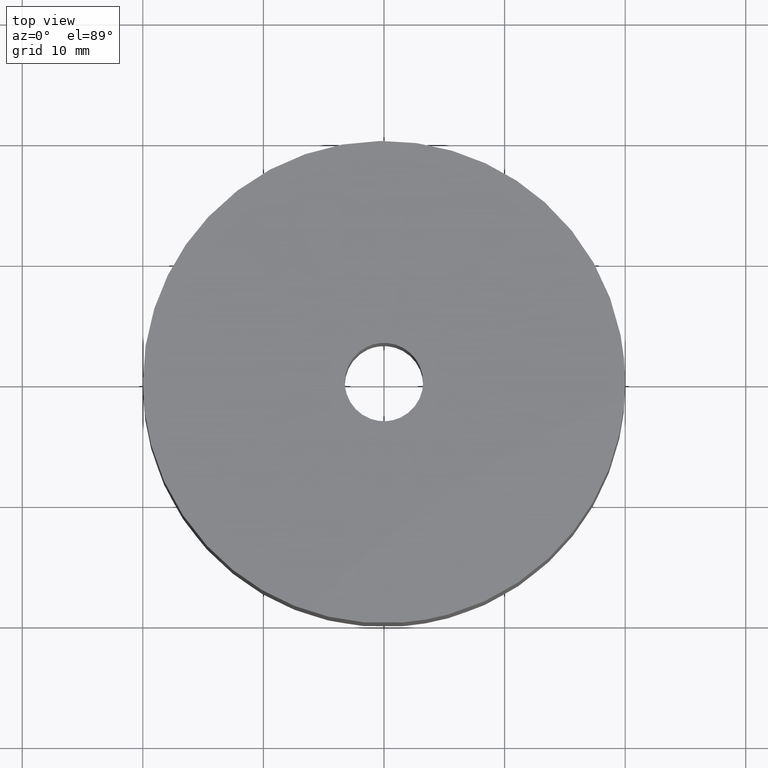
[diagram: clean part render]
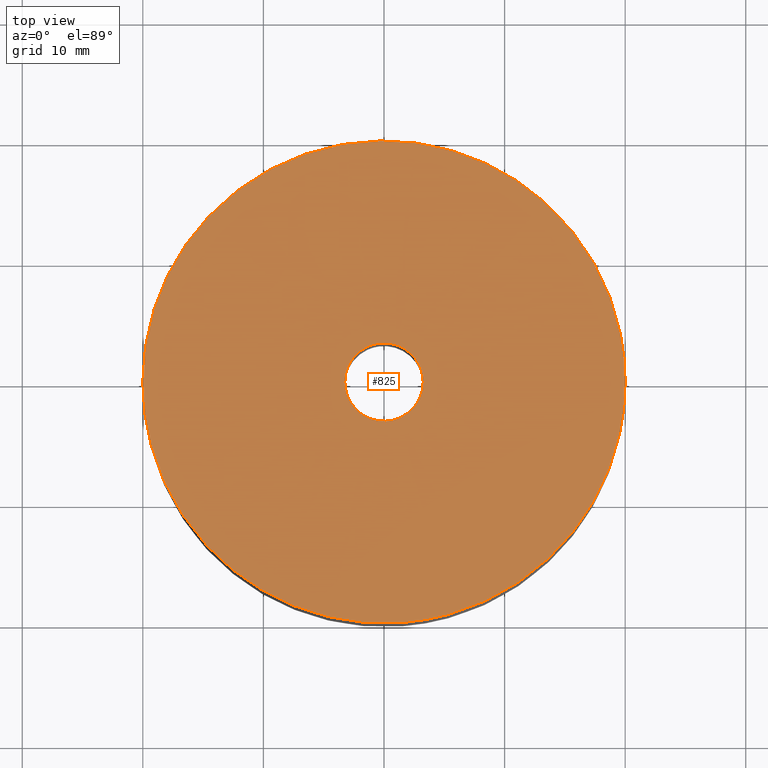
[diagram: same view with one face highlighted and labeled with its STEP entity id]
A machine part, top view. The second image highlights one B-rep face of the part: STEP entity #825.
In plain terms, the highlighted face is a freeform B-spline surface patch.
Its self-contained STEP definition (entity closure, byte-faithful):
#79=CARTESIAN_POINT('',(19.519379947706881,-4.358188437515530,22.0));
#80=VERTEX_POINT('',#79);
#86=CARTESIAN_POINT('',(1.569170534429815,-19.938347570291452,22.0));
#87=VERTEX_POINT('',#86);
#88=CARTESIAN_POINT('',(19.519379947706874,-4.358188437515530,22.0));
#89=CARTESIAN_POINT('',(16.299563135519694,-18.779048990072631,22.000000000000007));
#90=CARTESIAN_POINT('',(1.569170534429815,-19.938347570291448,22.000000000000004));
#98=(BOUNDED_CURVE()B_SPLINE_CURVE(2,(#88,#89,#90),.UNSPECIFIED.,.F.,.U.)B_SPLINE_CURVE_WITH_KNOTS((3,3),(0.537286562304474,0.736331398476015),.UNSPECIFIED.)CURVE()GEOMETRIC_REPRESENTATION_ITEM()RATIONAL_B_SPLINE_CURVE((0.925662737117169,0.762027683670648,0.969723560363300))REPRESENTATION_ITEM(''));
#99=EDGE_CURVE('',#80,#87,#98,.T.);
#213=CARTESIAN_POINT('',(-20.0,0.0,22.0));
#214=VERTEX_POINT('',#213);
#215=CARTESIAN_POINT('',(1.569170534429815,-19.938347570291448,22.000000000000004));
#216=CARTESIAN_POINT('',(0.785796423684385,-20.000000000000004,22.000000000000004));
#217=CARTESIAN_POINT('',(0.0,-20.0,22.0));
#218=CARTESIAN_POINT('',(-19.999999999999996,-19.999999999999996,22.000000000000007));
#219=CARTESIAN_POINT('',(-20.0,0.0,22.0));
#227=(BOUNDED_CURVE()B_SPLINE_CURVE(2,(#215,#216,#217,#218,#219),.UNSPECIFIED.,.F.,.U.)B_SPLINE_CURVE_WITH_KNOTS((3,2,3),(0.736331398476015,0.750000000000000,1.0),.UNSPECIFIED.)CURVE()GEOMETRIC_REPRESENTATION_ITEM()RATIONAL_B_SPLINE_CURVE((0.969723560363300,0.983986237211846,1.0,0.707106781186548,1.0))REPRESENTATION_ITEM(''));
#228=EDGE_CURVE('',#87,#214,#227,.T.);
#230=CARTESIAN_POINT('',(20.0,0.0,22.0));
#231=VERTEX_POINT('',#230);
#232=CARTESIAN_POINT('',(-20.0,0.0,22.0));
#233=CARTESIAN_POINT('',(-19.999999999999996,19.999999999999996,22.000000000000007));
#234=CARTESIAN_POINT('',(0.0,20.0,22.0));
#235=CARTESIAN_POINT('',(19.999999999999996,19.999999999999996,22.000000000000007));
#236=CARTESIAN_POINT('',(20.0,0.0,22.0));
#244=(BOUNDED_CURVE()B_SPLINE_CURVE(2,(#232,#233,#234,#235,#236),.UNSPECIFIED.,.F.,.U.)B_SPLINE_CURVE_WITH_KNOTS((3,2,3),(0.0,0.250000000000000,0.500000000000000),.UNSPECIFIED.)CURVE()GEOMETRIC_REPRESENTATION_ITEM()RATIONAL_B_SPLINE_CURVE((1.0,0.707106781186548,1.0,0.707106781186548,1.0))REPRESENTATION_ITEM(''));
#245=EDGE_CURVE('',#214,#231,#244,.T.);
#247=CARTESIAN_POINT('',(20.0,0.0,22.0));
#248=CARTESIAN_POINT('',(20.000000000000004,-2.205595555032925,22.0));
#249=CARTESIAN_POINT('',(19.519379947706877,-4.358188437515530,21.999999999999996));
#257=(BOUNDED_CURVE()B_SPLINE_CURVE(2,(#247,#248,#249),.UNSPECIFIED.,.F.,.U.)B_SPLINE_CURVE_WITH_KNOTS((3,3),(0.500000000000000,0.537286562304474),.UNSPECIFIED.)CURVE()GEOMETRIC_REPRESENTATION_ITEM()RATIONAL_B_SPLINE_CURVE((1.0,0.956316074992617,0.925662737117168))REPRESENTATION_ITEM(''));
#258=EDGE_CURVE('',#231,#80,#257,.T.);
#286=CARTESIAN_POINT('',(-0.383611262676458,3.227280960676924,22.0));
#287=VERTEX_POINT('',#286);
#288=CARTESIAN_POINT('',(3.250000000000000,0.0,22.0));
#289=VERTEX_POINT('',#288);
#290=CARTESIAN_POINT('',(-0.383611262676458,3.227280960676925,22.000000000000004));
#291=CARTESIAN_POINT('',(-0.192478388911145,3.250000000000000,22.000000000000004));
#292=CARTESIAN_POINT('',(0.0,3.250000000000000,22.0));
#293=CARTESIAN_POINT('',(3.250000000000000,3.250000000000000,21.999999999999993));
#294=CARTESIAN_POINT('',(3.250000000000000,0.0,22.0));
#302=(BOUNDED_CURVE()B_SPLINE_CURVE(2,(#290,#291,#292,#293,#294),.UNSPECIFIED.,.F.,.U.)B_SPLINE_CURVE_WITH_KNOTS((3,2,3),(0.229562473511246,0.250000000000000,0.500000000000000),.UNSPECIFIED.)CURVE()GEOMETRIC_REPRESENTATION_ITEM()RATIONAL_B_SPLINE_CURVE((0.956026754179265,0.976055948328495,1.0,0.707106781186547,1.0))REPRESENTATION_ITEM(''));
#303=EDGE_CURVE('',#287,#289,#302,.T.);
#344=CARTESIAN_POINT('',(0.198407753558544,-3.243938094866770,22.0));
#345=VERTEX_POINT('',#344);
#351=CARTESIAN_POINT('',(3.250000000000000,0.0,22.0));
#352=CARTESIAN_POINT('',(3.250000000000000,-3.057294717310810,21.999999999999993));
#353=CARTESIAN_POINT('',(0.198407753558544,-3.243938094866770,22.0));
#361=(BOUNDED_CURVE()B_SPLINE_CURVE(2,(#351,#352,#353),.UNSPECIFIED.,.F.,.U.)B_SPLINE_CURVE_WITH_KNOTS((3,3),(0.500000000000000,0.739332962234493),.UNSPECIFIED.)CURVE()GEOMETRIC_REPRESENTATION_ITEM()RATIONAL_B_SPLINE_CURVE((1.0,0.719603993291923,0.976072041657181))REPRESENTATION_ITEM(''));
#362=EDGE_CURVE('',#289,#345,#361,.T.);
#385=CARTESIAN_POINT('',(-3.250000000000000,0.0,22.0));
#386=VERTEX_POINT('',#385);
#387=CARTESIAN_POINT('',(-3.250000000000000,0.0,22.0));
#388=CARTESIAN_POINT('',(-3.250000000000001,2.886567209266297,21.999999999999996));
#389=CARTESIAN_POINT('',(-0.383611262676458,3.227280960676925,22.000000000000004));
#397=(BOUNDED_CURVE()B_SPLINE_CURVE(2,(#387,#388,#389),.UNSPECIFIED.,.F.,.U.)B_SPLINE_CURVE_WITH_KNOTS((3,3),(0.0,0.229562473511246),.UNSPECIFIED.)CURVE()GEOMETRIC_REPRESENTATION_ITEM()RATIONAL_B_SPLINE_CURVE((1.0,0.731050832858053,0.956026754179265))REPRESENTATION_ITEM(''));
#398=EDGE_CURVE('',#386,#287,#397,.T.);
#400=CARTESIAN_POINT('',(0.198407753558544,-3.243938094866769,22.000000000000004));
#401=CARTESIAN_POINT('',(0.099296480790870,-3.250000000000000,22.000000000000007));
#402=CARTESIAN_POINT('',(0.0,-3.250000000000000,22.0));
#403=CARTESIAN_POINT('',(-3.250000000000000,-3.250000000000000,21.999999999999993));
#404=CARTESIAN_POINT('',(-3.250000000000000,0.0,22.0));
#412=(BOUNDED_CURVE()B_SPLINE_CURVE(2,(#400,#401,#402,#403,#404),.UNSPECIFIED.,.F.,.U.)B_SPLINE_CURVE_WITH_KNOTS((3,2,3),(0.739332962234494,0.750000000000000,1.0),.UNSPECIFIED.)CURVE()GEOMETRIC_REPRESENTATION_ITEM()RATIONAL_B_SPLINE_CURVE((0.976072041657183,0.987502787894625,1.0,0.707106781186547,1.0))REPRESENTATION_ITEM(''));
#413=EDGE_CURVE('',#345,#386,#412,.T.);
#808=CARTESIAN_POINT('',(21.997999922472239,-21.992172296243911,22.0));
#809=CARTESIAN_POINT('',(-21.998000995355849,-21.992172296243911,22.0));
#810=CARTESIAN_POINT('',(21.997999922472239,21.997723753648991,22.0));
#811=CARTESIAN_POINT('',(-21.998000995355849,21.997723753648991,22.0));
#812=B_SPLINE_SURFACE_WITH_KNOTS('',1,1,((#808,#810),(#809,#811)),.UNSPECIFIED.,.F.,.F.,.U.,(2,2),(2,2),(0.0,43.996000917828077),(0.0,43.989896049892913),.UNSPECIFIED.);
#813=ORIENTED_EDGE('',*,*,#228,.F.);
#814=ORIENTED_EDGE('',*,*,#99,.F.);
#815=ORIENTED_EDGE('',*,*,#258,.F.);
#816=ORIENTED_EDGE('',*,*,#245,.F.);
#817=EDGE_LOOP('',(#813,#814,#815,#816));
#818=FACE_OUTER_BOUND('',#817,.T.);
#819=ORIENTED_EDGE('',*,*,#362,.T.);
#820=ORIENTED_EDGE('',*,*,#413,.T.);
#821=ORIENTED_EDGE('',*,*,#398,.T.);
#822=ORIENTED_EDGE('',*,*,#303,.T.);
#823=EDGE_LOOP('',(#819,#820,#821,#822));
#824=FACE_BOUND('',#823,.T.);
#825=ADVANCED_FACE('',(#818,#824),#812,.F.);